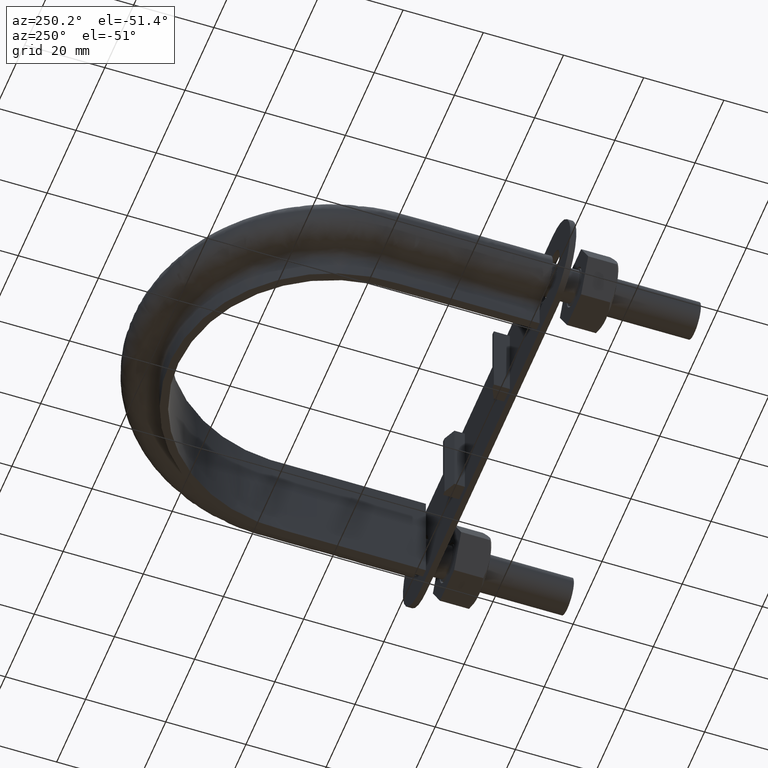
[diagram: clean part render]
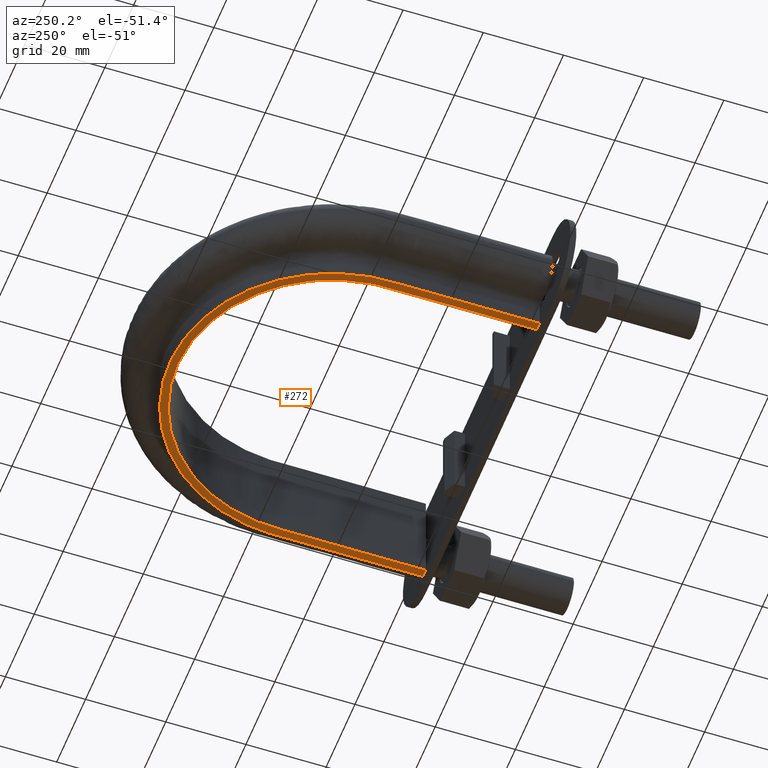
[diagram: same view with one face highlighted and labeled with its STEP entity id]
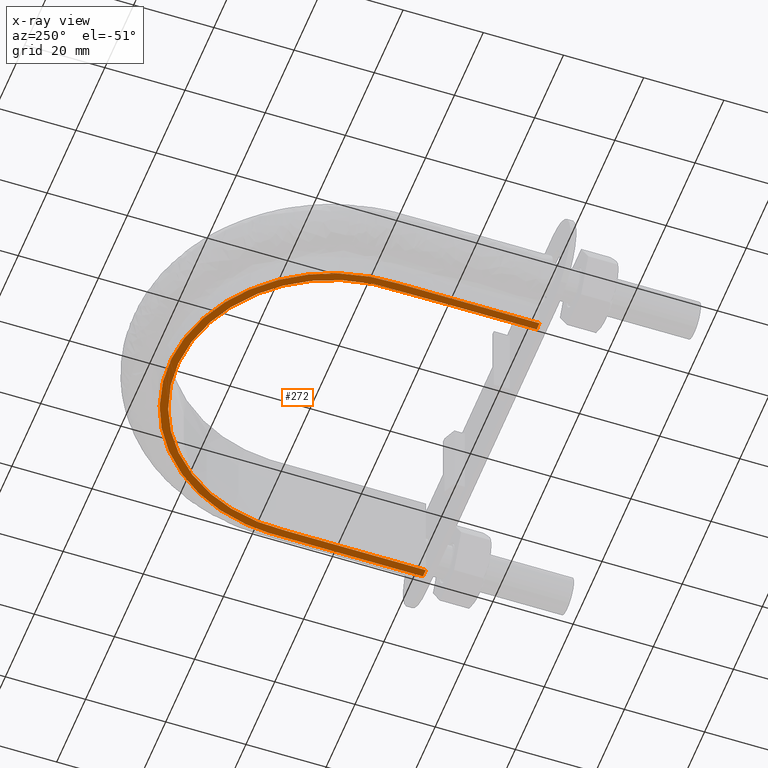
[diagram: x-ray of the same camera — body ghosted, the highlighted face saturated]
A machine part, auxiliary view. The second image highlights one B-rep face of the part: STEP entity #272.
The next image is the same camera in x-ray: the body ghosted, the highlighted face saturated — about 0% of this face is hidden behind the body in this view.
In plain terms, the highlighted planar face has unit normal (0, 0, 1).
Its self-contained STEP definition (entity closure, byte-faithful):
#272 = ADVANCED_FACE( '', ( #391 ), #392, .F. );
#391 = FACE_OUTER_BOUND( '', #1171, .T. );
#392 = PLANE( '', #1172 );
#1171 = EDGE_LOOP( '', ( #1759, #1760, #1761, #1762 ) );
#1172 = AXIS2_PLACEMENT_3D( '', #1763, #1764, #1765 );
#1759 = ORIENTED_EDGE( '', *, *, #2530, .F. );
#1760 = ORIENTED_EDGE( '', *, *, #2520, .F. );
#1761 = ORIENTED_EDGE( '', *, *, #2529, .F. );
#1762 = ORIENTED_EDGE( '', *, *, #2526, .F. );
#1763 = CARTESIAN_POINT( '', ( 55.0000000000000, 137.300000000000, -12.5000000000000 ) );
#1764 = DIRECTION( '', ( 0.000000000000000, 0.000000000000000, 1.00000000000000 ) );
#1765 = DIRECTION( '', ( 1.00000000000000, 0.000000000000000, 0.000000000000000 ) );
#2520 = EDGE_CURVE( '', #2756, #2752, #2758, .T. );
#2526 = EDGE_CURVE( '', #2766, #2768, #2769, .T. );
#2529 = EDGE_CURVE( '', #2768, #2756, #2773, .F. );
#2530 = EDGE_CURVE( '', #2752, #2766, #2774, .F. );
#2752 = VERTEX_POINT( '', #3140 );
#2756 = VERTEX_POINT( '', #3146 );
#2758 = LINE( '', #3178, #3179 );
#2766 = VERTEX_POINT( '', #3298 );
#2768 = VERTEX_POINT( '', #3301 );
#2769 = LINE( '', #3302, #3303 );
#2773 = B_SPLINE_CURVE_WITH_KNOTS( '', 3, ( #3346, #3347, #3348, #3349, #3350, #3351, #3352, #3353, #3354, #3355, #3356, #3357, #3358, #3359, #3360, #3361, #3362 ), .UNSPECIFIED., .F., .F., ( 4, 3, 1, 1, 1, 1, 1, 1, 1, 3, 4 ), ( 0.0698254364089771, 1.00000000000000, 1.50000000000000, 2.00000000000000, 3.00000000000000, 4.00000000000000, 5.00000000000000, 6.00000000000000, 6.50000000000000, 7.00000000000000, 7.93017456359102 ), .UNSPECIFIED. );
#2774 = B_SPLINE_CURVE_WITH_KNOTS( '', 3, ( #3363, #3364, #3365, #3366, #3367, #3368, #3369, #3370, #3371, #3372, #3373, #3374, #3375, #3376, #3377, #3378, #3379 ), .UNSPECIFIED., .F., .F., ( 4, 3, 1, 1, 1, 1, 1, 1, 1, 3, 4 ), ( -7.93017456359102, -7.00000000000000, -6.50000000000000, -6.00000000000000, -5.00000000000000, -4.00000000000000, -3.00000000000000, -2.00000000000000, -1.50000000000000, -1.00000000000000, -0.0698254364089773 ), .UNSPECIFIED. );
#3140 = CARTESIAN_POINT( '', ( -38.4000000000000, 37.3000000000000, -12.5000000000000 ) );
#3146 = CARTESIAN_POINT( '', ( -40.4000000000000, 37.3000000000000, -12.5000000000000 ) );
#3178 = CARTESIAN_POINT( '', ( -55.0000000000000, 37.3000000000000, -12.5000000000000 ) );
#3179 = VECTOR( '', #4014, 1000.00000000000 );
#3298 = CARTESIAN_POINT( '', ( 38.4000000000000, 37.3000000000000, -12.5000000000000 ) );
#3301 = CARTESIAN_POINT( '', ( 40.4000000000000, 37.3000000000000, -12.5000000000000 ) );
#3302 = CARTESIAN_POINT( '', ( -55.0000000000000, 37.3000000000000, -12.5000000000000 ) );
#3303 = VECTOR( '', #4017, 1000.00000000000 );
#3346 = CARTESIAN_POINT( '', ( -40.4000000000000, 37.3000000000000, -12.5000000000000 ) );
#3347 = CARTESIAN_POINT( '', ( -40.4000000000000, 49.7333333333334, -12.5000000000000 ) );
#3348 = CARTESIAN_POINT( '', ( -40.4000000000000, 62.1666666666667, -12.5000000000000 ) );
#3349 = CARTESIAN_POINT( '', ( -40.4000000000000, 74.6000000000000, -12.5000000000000 ) );
#3350 = CARTESIAN_POINT( '', ( -40.4000000000000, 78.1165288331969, -12.5000000000000 ) );
#3351 = CARTESIAN_POINT( '', ( -39.4544182095027, 85.1751790194886, -12.5000000000000 ) );
#3352 = CARTESIAN_POINT( '', ( -34.0439198137652, 98.3222802912663, -12.5000000000000 ) );
#3353 = CARTESIAN_POINT( '', ( -21.1440253219688, 111.223582281160, -12.5000000000000 ) );
#3354 = CARTESIAN_POINT( '', ( 3.16614390853843E-014, 116.888208859420, -12.5000000000000 ) );
#3355 = CARTESIAN_POINT( '', ( 21.1440253219689, 111.223582281160, -12.5000000000000 ) );
#3356 = CARTESIAN_POINT( '', ( 34.0439198137653, 98.3222802912663, -12.5000000000000 ) );
#3357 = CARTESIAN_POINT( '', ( 39.4544182095027, 85.1751790194886, -12.5000000000000 ) );
#3358 = CARTESIAN_POINT( '', ( 40.4000000000000, 78.1165288331968, -12.5000000000000 ) );
#3359 = CARTESIAN_POINT( '', ( 40.4000000000000, 74.6000000000000, -12.5000000000000 ) );
#3360 = CARTESIAN_POINT( '', ( 40.4000000000000, 62.1666666666666, -12.5000000000000 ) );
#3361 = CARTESIAN_POINT( '', ( 40.4000000000000, 49.7333333333333, -12.5000000000000 ) );
#3362 = CARTESIAN_POINT( '', ( 40.4000000000000, 37.3000000000000, -12.5000000000000 ) );
#3363 = CARTESIAN_POINT( '', ( 38.4000000000000, 37.3000000000000, -12.5000000000000 ) );
#3364 = CARTESIAN_POINT( '', ( 38.4000000000000, 49.7333333333333, -12.5000000000000 ) );
#3365 = CARTESIAN_POINT( '', ( 38.4000000000000, 62.1666666666667, -12.5000000000000 ) );
#3366 = CARTESIAN_POINT( '', ( 38.4000000000000, 74.6000000000000, -12.5000000000000 ) );
#3367 = CARTESIAN_POINT( '', ( 38.4000000000000, 77.9378960382428, -12.5000000000000 ) );
#3368 = CARTESIAN_POINT( '', ( 37.5004323173849, 84.6534987012364, -12.5000000000000 ) );
#3369 = CARTESIAN_POINT( '', ( 32.3590360537293, 97.1468427507952, -12.5000000000000 ) );
#3370 = CARTESIAN_POINT( '', ( 20.0971465093487, 109.410921736661, -12.5000000000000 ) );
#3371 = CARTESIAN_POINT( '', ( 2.79356000082899E-014, 114.794539131670, -12.5000000000000 ) );
#3372 = CARTESIAN_POINT( '', ( -20.0971465093486, 109.410921736661, -12.5000000000000 ) );
#3373 = CARTESIAN_POINT( '', ( -32.3590360537293, 97.1468427507952, -12.5000000000000 ) );
#3374 = CARTESIAN_POINT( '', ( -37.5004323173848, 84.6534987012364, -12.5000000000000 ) );
#3375 = CARTESIAN_POINT( '', ( -38.4000000000000, 77.9378960382428, -12.5000000000000 ) );
#3376 = CARTESIAN_POINT( '', ( -38.4000000000000, 74.6000000000000, -12.5000000000000 ) );
#3377 = CARTESIAN_POINT( '', ( -38.4000000000000, 62.1666666666667, -12.5000000000000 ) );
#3378 = CARTESIAN_POINT( '', ( -38.4000000000000, 49.7333333333333, -12.5000000000000 ) );
#3379 = CARTESIAN_POINT( '', ( -38.4000000000000, 37.3000000000000, -12.5000000000000 ) );
#4014 = DIRECTION( '', ( 1.00000000000000, -1.83649404852125E-048, 0.000000000000000 ) );
#4017 = DIRECTION( '', ( 1.00000000000000, -1.83649404852125E-048, 0.000000000000000 ) );